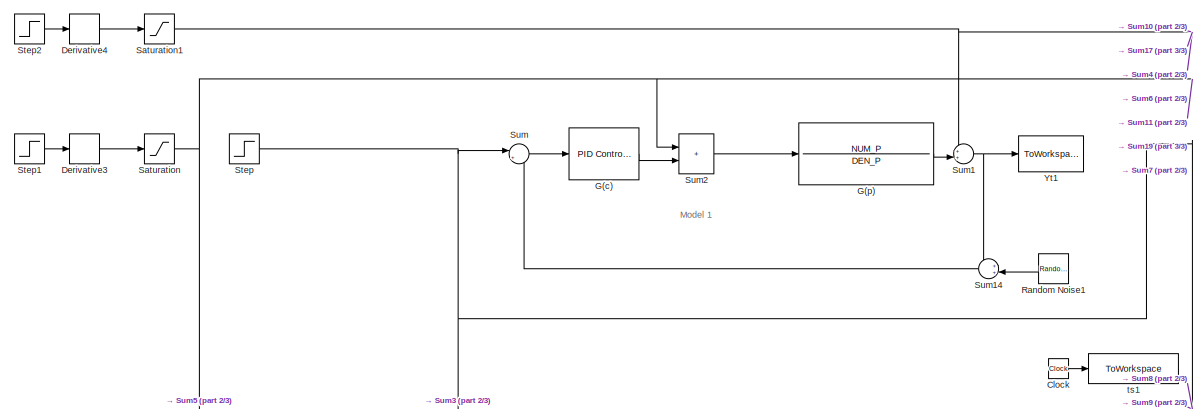
[diagram: root canvas - part 1/3, top left region]
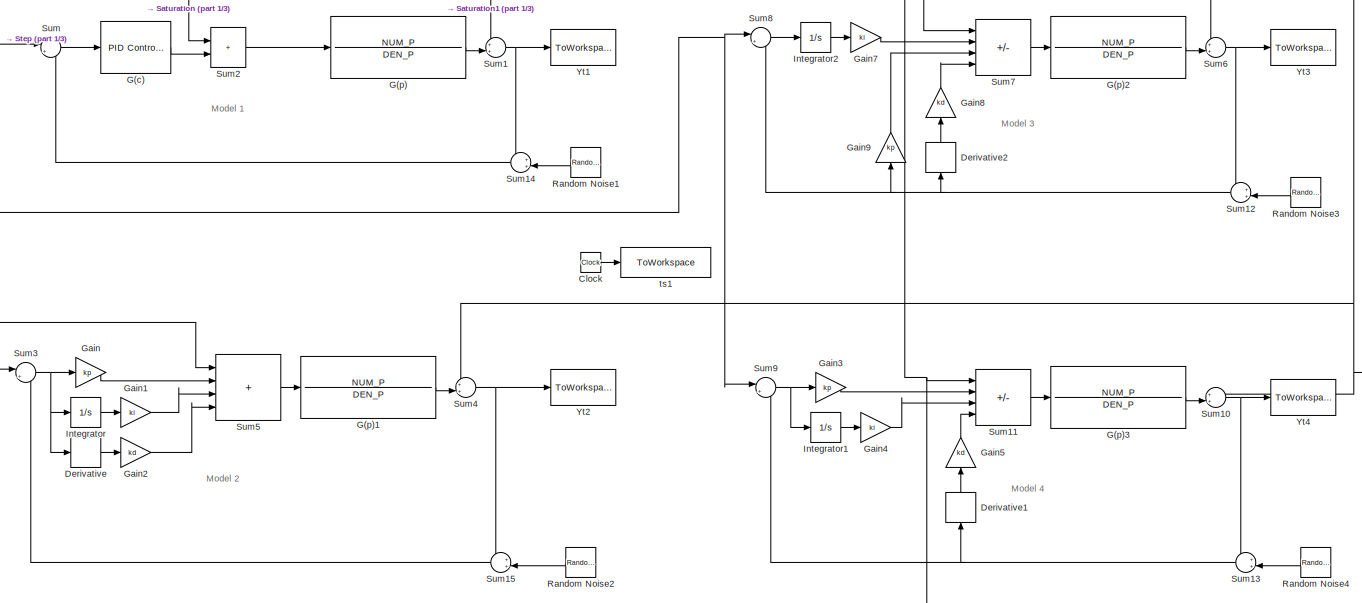
[diagram: root canvas - part 2/3, central region]
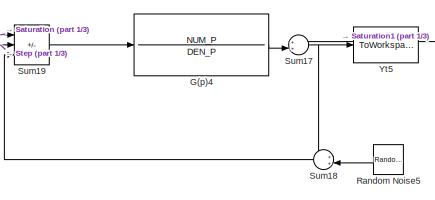
[diagram: root canvas - part 3/3, bottom center region]
MODEL slx_0d138ec3aaf5
KIND model
CONFIG AbsTol = auto
CONFIG EnableMultiTasking = off
CONFIG FixedStep = auto
CONFIG MaxStep = auto
CONFIG MinStep = auto
CONFIG RelTol = 1e-3
CONFIG SampleTimeConstraint = Unconstrained
CONFIG SolverName = VariableStepAuto
CONFIG StartTime = 0.0
CONFIG StopTime = st
BLOCK [Clock] Clock
  AttributesFormatString = %<Tag>
  Tag = Clock
BLOCK [Derivative] Derivative
BLOCK [Derivative] Derivative1
  NameLocation = right
BLOCK [Derivative] Derivative2
  NameLocation = right
BLOCK [Derivative] Derivative3
BLOCK [Derivative] Derivative4
BLOCK [Reference] G(c)  REF=pid_lib/PID Controller
  Ports = [1, 1]
  SourceBlock = pid_lib/PID Controller
  SourceProductBaseCode = SL
  SourceType = PID 1dof
BLOCK [TransferFcn] G(p)
  Denominator = DEN_P
  Numerator = NUM_P
BLOCK [TransferFcn] G(p)1
  Denominator = DEN_P
  Numerator = NUM_P
BLOCK [TransferFcn] G(p)2
  Denominator = DEN_P
  Numerator = NUM_P
BLOCK [TransferFcn] G(p)3
  Denominator = DEN_P
  Numerator = NUM_P
BLOCK [TransferFcn] G(p)4
  Denominator = DEN_P
  Numerator = NUM_P
BLOCK [Gain] Gain
  Gain = kp
BLOCK [Gain] Gain1
  Gain = ki
BLOCK [Gain] Gain2
  Gain = kd
BLOCK [Gain] Gain3
  Gain = kp
BLOCK [Gain] Gain4
  Gain = ki
BLOCK [Gain] Gain5
  Gain = kd
  NameLocation = right
BLOCK [Gain] Gain7
  Gain = ki
BLOCK [Gain] Gain8
  Gain = kd
  NameLocation = right
BLOCK [Gain] Gain9
  Gain = kp
  NameLocation = right
BLOCK [Integrator] Integrator
  Ports = [1, 1]
BLOCK [Integrator] Integrator1
  Ports = [1, 1]
BLOCK [Integrator] Integrator2
  Ports = [1, 1]
BLOCK [RandomNumber] Random Noise1
  Mean = noise_amp
  NameLocation = top
  SampleTime = 1/noise_freq
  Variance = noise_var
BLOCK [RandomNumber] Random Noise2
  Mean = noise_amp
  NameLocation = top
  SampleTime = 1/noise_freq
  Variance = noise_var
BLOCK [RandomNumber] Random Noise3
  Mean = noise_amp
  NameLocation = top
  SampleTime = 1/noise_freq
  Variance = noise_var
BLOCK [RandomNumber] Random Noise4
  Mean = noise_amp
  NameLocation = top
  SampleTime = 1/noise_freq
  Variance = noise_var
BLOCK [RandomNumber] Random Noise5
  Mean = noise_amp
  NameLocation = top
  SampleTime = 1/noise_freq
  Variance = noise_var
BLOCK [Saturate] Saturation
  LowerLimit = 0
  UpperLimit = dis_in_amp
BLOCK [Saturate] Saturation1
  LowerLimit = 0
  UpperLimit = dis_out_amp
BLOCK [Step] Step
  After = sp
  AttributesFormatString = %<Name>
  SampleTime = 0
BLOCK [Step] Step1
  AttributesFormatString = %<Name>
  SampleTime = 0
  Time = dis_in_time
BLOCK [Step] Step2
  AttributesFormatString = %<Name>
  SampleTime = 0
  Time = dis_out_time
BLOCK [Sum] Sum
  Inputs = |+-
  Ports = [2, 1]
BLOCK [Sum] Sum1
  Inputs = ++|
  Ports = [2, 1]
BLOCK [Sum] Sum10
  Inputs = ++|
  Ports = [2, 1]
BLOCK [Sum] Sum11
  IconShape = rectangular
  Inputs = +++-|
  NameLocation = right
  Ports = [4, 1]
BLOCK [Sum] Sum12
  Inputs = ++|
  NameLocation = top
  Ports = [2, 1]
BLOCK [Sum] Sum13
  Inputs = ++|
  NameLocation = top
  Ports = [2, 1]
BLOCK [Sum] Sum14
  Inputs = ++|
  NameLocation = top
  Ports = [2, 1]
BLOCK [Sum] Sum15
  Inputs = ++|
  NameLocation = top
  Ports = [2, 1]
BLOCK [Sum] Sum17
  Inputs = ++|
  Ports = [2, 1]
BLOCK [Sum] Sum18
  Inputs = ++|
  NameLocation = top
  Ports = [2, 1]
BLOCK [Sum] Sum19
  IconShape = rectangular
  Inputs = ++-|
  Ports = [3, 1]
BLOCK [Sum] Sum2
  IconShape = rectangular
  Inputs = ++|
  Ports = [2, 1]
BLOCK [Sum] Sum3
  Inputs = |+-
  Ports = [2, 1]
BLOCK [Sum] Sum4
  Inputs = ++|
  Ports = [2, 1]
BLOCK [Sum] Sum5
  IconShape = rectangular
  Inputs = ++++|
  NameLocation = right
  Ports = [4, 1]
BLOCK [Sum] Sum6
  Inputs = ++|
  Ports = [2, 1]
BLOCK [Sum] Sum7
  IconShape = rectangular
  Inputs = ++--|
  NameLocation = right
  Ports = [4, 1]
BLOCK [Sum] Sum8
  Inputs = |+-
  Ports = [2, 1]
BLOCK [Sum] Sum9
  Inputs = |+-
  Ports = [2, 1]
BLOCK [ToWorkspace] Yt1
  FixptAsFi = on
  MaxDataPoints = inf
  Ports = [1]
  SampleTime = -1
  Save2DSignal = 2-D array (concatenate along first dimension)
  VariableName = yt1
BLOCK [ToWorkspace] Yt2
  FixptAsFi = on
  MaxDataPoints = inf
  Ports = [1]
  SampleTime = -1
  Save2DSignal = 2-D array (concatenate along first dimension)
  VariableName = yt2
BLOCK [ToWorkspace] Yt3
  FixptAsFi = on
  MaxDataPoints = inf
  Ports = [1]
  SampleTime = -1
  Save2DSignal = 2-D array (concatenate along first dimension)
  VariableName = yt3
BLOCK [ToWorkspace] Yt4
  FixptAsFi = on
  MaxDataPoints = inf
  Ports = [1]
  SampleTime = -1
  Save2DSignal = 2-D array (concatenate along first dimension)
  VariableName = yt4
BLOCK [ToWorkspace] Yt5
  FixptAsFi = on
  MaxDataPoints = inf
  Ports = [1]
  SampleTime = -1
  Save2DSignal = 2-D array (concatenate along first dimension)
  VariableName = ytp
BLOCK [ToWorkspace] ts1
  FixptAsFi = on
  MaxDataPoints = inf
  Ports = [1]
  SampleTime = -1
  Save2DSignal = 2-D array (concatenate along first dimension)
  VariableName = ts1
ANNOTATION (root): Model 1
ANNOTATION (root): Model 2
ANNOTATION (root): Model 3
ANNOTATION (root): Model 4
LINE Clock:1 -> ts1:1
LINE Derivative1:1 -> Gain5:1
LINE Derivative2:1 -> Gain8:1
LINE Derivative3:1 -> Saturation:1
LINE Derivative4:1 -> Saturation1:1
LINE Derivative:1 -> Gain2:1
LINE G(c):1 -> Sum2:2
LINE G(p)1:1 -> Sum4:2
LINE G(p)2:1 -> Sum6:2
LINE G(p)3:1 -> Sum10:2
LINE G(p)4:1 -> Sum17:2
LINE G(p):1 -> Sum1:2
LINE Gain1:1 -> Sum5:3
LINE Gain2:1 -> Sum5:4
LINE Gain3:1 -> Sum11:2
LINE Gain4:1 -> Sum11:3
LINE Gain5:1 -> Sum11:4
LINE Gain7:1 -> Sum7:2
LINE Gain8:1 -> Sum7:4
LINE Gain9:1 -> Sum7:3
LINE Gain:1 -> Sum5:2
LINE Integrator1:1 -> Gain4:1
LINE Integrator2:1 -> Gain7:1
LINE Integrator:1 -> Gain1:1
LINE Random Noise1:1 -> Sum14:2
LINE Random Noise2:1 -> Sum15:2
LINE Random Noise3:1 -> Sum12:2
LINE Random Noise4:1 -> Sum13:2
LINE Random Noise5:1 -> Sum18:2
NET Saturation1:1 -> Sum10:1, Sum17:1, Sum1:1, Sum4:1, Sum6:1
NET Saturation:1 -> Sum11:1, Sum19:1, Sum2:1, Sum5:1, Sum7:1
LINE Step1:1 -> Derivative3:1
LINE Step2:1 -> Derivative4:1
NET Step:1 -> Sum19:2, Sum3:1, Sum8:1, Sum9:1, Sum:1
NET Sum10:1 -> Sum13:1, Yt4:1
LINE Sum11:1 -> G(p)3:1
NET Sum12:1 -> Derivative2:1, Gain9:1, Sum8:2
NET Sum13:1 -> Derivative1:1, Sum9:2
LINE Sum14:1 -> Sum:2
LINE Sum15:1 -> Sum3:2
NET Sum17:1 -> Sum18:1, Yt5:1
LINE Sum18:1 -> Sum19:3
LINE Sum19:1 -> G(p)4:1
NET Sum1:1 -> Sum14:1, Yt1:1
LINE Sum2:1 -> G(p):1
NET Sum3:1 -> Derivative:1, Gain:1, Integrator:1
NET Sum4:1 -> Sum15:1, Yt2:1
LINE Sum5:1 -> G(p)1:1
NET Sum6:1 -> Sum12:1, Yt3:1
LINE Sum7:1 -> G(p)2:1
LINE Sum8:1 -> Integrator2:1
NET Sum9:1 -> Gain3:1, Integrator1:1
LINE Sum:1 -> G(c):1
note: NET lines group one-source signal fan-out (src -> all destinations, sorted); 1:1 wires keep LINE
